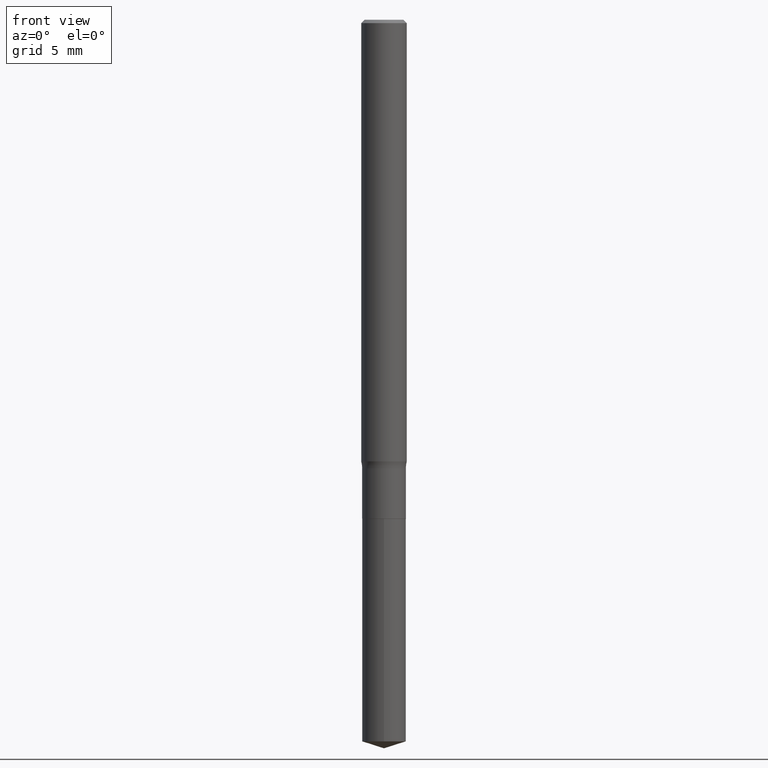
[diagram: clean part render]
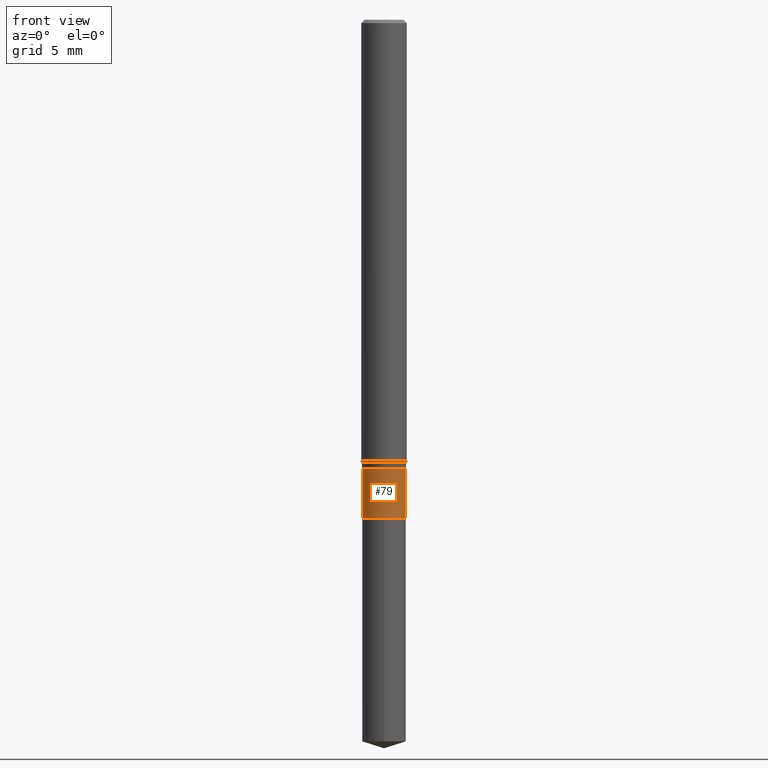
[diagram: same view with one face highlighted and labeled with its STEP entity id]
A machine part, front view. The second image highlights one B-rep face of the part: STEP entity #79.
In plain terms, the highlighted cylindrical surface (edge-blend (fillet) strip) has radius 1.524 mm, axis along (-0, 0, 1).
Its self-contained STEP definition (entity closure, byte-faithful):
#11 = VERTEX_POINT ( 'NONE', #25 ) ;
#25 = CARTESIAN_POINT ( 'NONE',  ( 0.05999999999999999778, -5.200561454206863446E-15, -1.369499999999999940 ) ) ;
#34 = CIRCLE ( 'NONE', #485, 0.05999999999999998390 ) ;
#37 = EDGE_CURVE ( 'NONE', #140, #11, #325, .T. ) ;
#39 = LINE ( 'NONE', #347, #219 ) ;
#47 = VECTOR ( 'NONE', #370, 39.37007874015748143 ) ;
#51 = ORIENTED_EDGE ( 'NONE', *, *, #392, .F. ) ;
#64 = DIRECTION ( 'NONE',  ( -2.445468806185136597E-29, 3.491481338843145583E-15, 1.000000000000000000 ) ) ;
#65 = CYLINDRICAL_SURFACE ( 'NONE', #339, 0.05999999999999999084 ) ;
#79 = ADVANCED_FACE ( 'NONE', ( #408 ), #65, .T. ) ;
#83 = ORIENTED_EDGE ( 'NONE', *, *, #37, .T. ) ;
#122 = EDGE_LOOP ( 'NONE', ( #51, #83, #198, #192 ) ) ;
#136 = DIRECTION ( 'NONE',  ( -2.445468806185136597E-29, 3.491481338843145583E-15, 1.000000000000000000 ) ) ;
#140 = VERTEX_POINT ( 'NONE', #480 ) ;
#146 = CARTESIAN_POINT ( 'NONE',  ( -0.05999999999999998390, -4.115218710044161299E-15, -1.231999999999999762 ) ) ;
#154 = CARTESIAN_POINT ( 'NONE',  ( 0.05999999999999998390, -4.720482770115931032E-15, -1.231999999999999762 ) ) ;
#165 = CARTESIAN_POINT ( 'NONE',  ( 0.05999999999999999084, -4.189777606611759435E-16, 2.925706065477561055E-30 ) ) ;
#192 = ORIENTED_EDGE ( 'NONE', *, *, #266, .F. ) ;
#198 = ORIENTED_EDGE ( 'NONE', *, *, #474, .T. ) ;
#209 = LINE ( 'NONE', #165, #47 ) ;
#219 = VECTOR ( 'NONE', #305, 39.37007874015748143 ) ;
#237 = DIRECTION ( 'NONE',  ( 1.000000000000000000, -6.982962677686268288E-15, 0.000000000000000000 ) ) ;
#243 = DIRECTION ( 'NONE',  ( 1.000000000000000000, -6.982962677686266711E-15, 4.876176775795935793E-29 ) ) ;
#253 = CARTESIAN_POINT ( 'NONE',  ( 0.000000000000000000, 0.000000000000000000, 0.000000000000000000 ) ) ;
#256 = VERTEX_POINT ( 'NONE', #154 ) ;
#266 = EDGE_CURVE ( 'NONE', #379, #256, #34, .T. ) ;
#271 = AXIS2_PLACEMENT_3D ( 'NONE', #481, #136, #237 ) ;
#277 = DIRECTION ( 'NONE',  ( -2.445468806185136597E-29, 3.491481338843145583E-15, 1.000000000000000000 ) ) ;
#305 = DIRECTION ( 'NONE',  ( -2.445468806185136877E-29, 3.491481338843145188E-15, 1.000000000000000000 ) ) ;
#325 = CIRCLE ( 'NONE', #271, 0.05999999999999999778 ) ;
#339 = AXIS2_PLACEMENT_3D ( 'NONE', #253, #64, #243 ) ;
#347 = CARTESIAN_POINT ( 'NONE',  ( -0.05999999999999999084, 4.263256414560600464E-16, -2.951361054152942712E-30 ) ) ;
#370 = DIRECTION ( 'NONE',  ( -2.445468806185136877E-29, 3.491481338843145188E-15, 1.000000000000000000 ) ) ;
#379 = VERTEX_POINT ( 'NONE', #146 ) ;
#392 = EDGE_CURVE ( 'NONE', #140, #379, #39, .T. ) ;
#393 = CARTESIAN_POINT ( 'NONE',  ( 3.012817569220087740E-29, -4.301505009454755187E-15, -1.231999999999999762 ) ) ;
#408 = FACE_OUTER_BOUND ( 'NONE', #122, .T. ) ;
#466 = DIRECTION ( 'NONE',  ( 1.000000000000000000, -6.982962677686269866E-15, 0.000000000000000000 ) ) ;
#474 = EDGE_CURVE ( 'NONE', #11, #256, #209, .T. ) ;
#480 = CARTESIAN_POINT ( 'NONE',  ( -0.06000000000000001166, -4.115218710044161299E-15, -1.369499999999999940 ) ) ;
#481 = CARTESIAN_POINT ( 'NONE',  ( 3.349069530070544246E-29, -4.781583693545687601E-15, -1.369499999999999940 ) ) ;
#485 = AXIS2_PLACEMENT_3D ( 'NONE', #393, #277, #466 ) ;